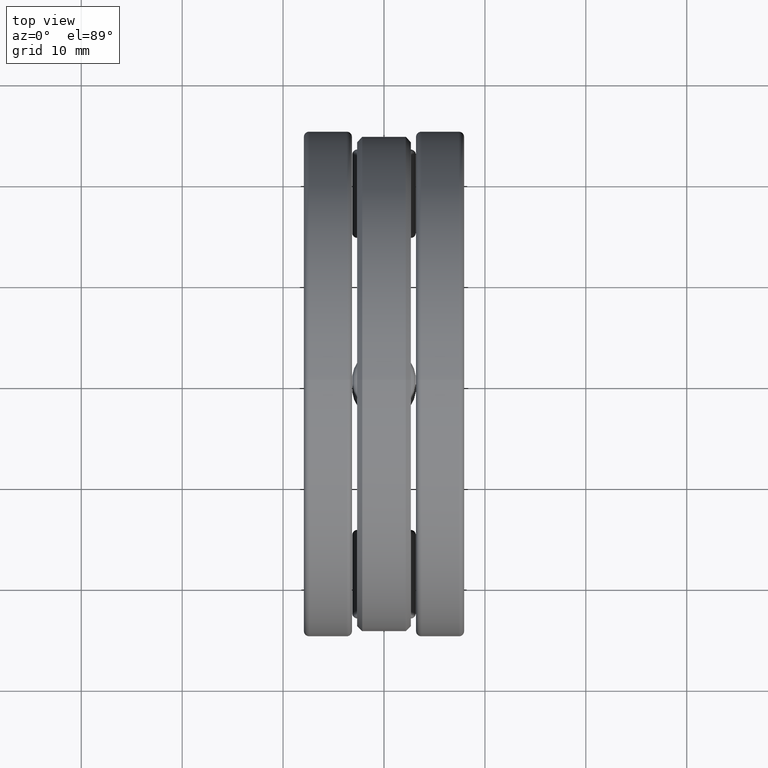
[diagram: clean part render]
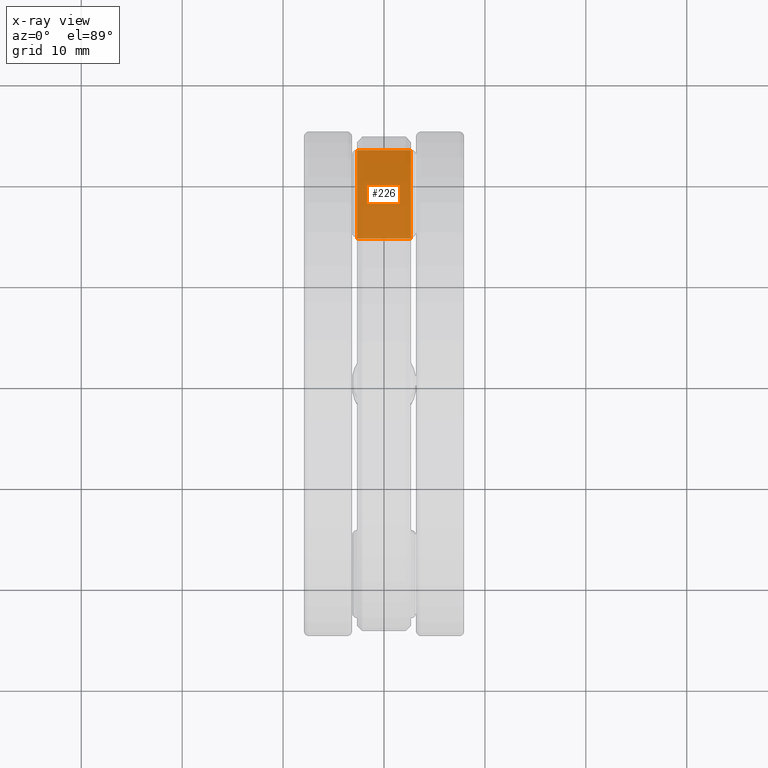
[diagram: x-ray — body ghosted, one internal face saturated and labeled with its STEP entity id]
A machine part, top view, then the same camera in x-ray: the body is ghosted and one INTERNAL B-rep face — a face not visible from any outside direction — is saturated and labeled: STEP entity #226.
In plain terms, the highlighted planar face has unit normal (0, 0, -1).
Its self-contained STEP definition (entity closure, byte-faithful):
#42 = FACE_OUTER_BOUND ( 'NONE', #883, .T. ) ;
#95 = DIRECTION ( 'NONE',  ( 0.0000000000000000000, 9.915963679362131500E-017, -1.000000000000000000 ) ) ;
#122 = DIRECTION ( 'NONE',  ( 1.000000000000000000, -0.0000000000000000000, -0.0000000000000000000 ) ) ;
#150 = LINE ( 'NONE', #971, #168 ) ;
#160 = ORIENTED_EDGE ( 'NONE', *, *, #479, .T. ) ;
#168 = VECTOR ( 'NONE', #991, 39.37007874015748100 ) ;
#226 = ADVANCED_FACE ( 'NONE', ( #42 ), #554, .F. ) ;
#227 = CARTESIAN_POINT ( 'NONE',  ( 0.1050000000000000400, 3.012874373890890600E-017, -0.1250000000000000600 ) ) ;
#283 = EDGE_CURVE ( 'NONE', #687, #717, #150, .T. ) ;
#296 = LINE ( 'NONE', #227, #1449 ) ;
#357 = LINE ( 'NONE', #691, #617 ) ;
#377 = EDGE_CURVE ( 'NONE', #1283, #687, #1036, .T. ) ;
#479 = EDGE_CURVE ( 'NONE', #635, #717, #296, .T. ) ;
#487 = CARTESIAN_POINT ( 'NONE',  ( 0.1050000000000000400, 0.5700000000000000600, -0.1250000000000000300 ) ) ;
#554 = PLANE ( 'NONE',  #755 ) ;
#559 = EDGE_CURVE ( 'NONE', #1283, #635, #357, .T. ) ;
#564 = DIRECTION ( 'NONE',  ( -0.0000000000000000000, 1.000000000000000000, 9.915963679362131500E-017 ) ) ;
#605 = CARTESIAN_POINT ( 'NONE',  ( -0.1049999999999999700, 0.9143749999999996000, -0.1249999999999999900 ) ) ;
#617 = VECTOR ( 'NONE', #122, 39.37007874015748100 ) ;
#635 = VERTEX_POINT ( 'NONE', #487 ) ;
#687 = VERTEX_POINT ( 'NONE', #605 ) ;
#691 = CARTESIAN_POINT ( 'NONE',  ( -0.3125000000000000600, 0.5700000000000000600, -0.1250000000000000300 ) ) ;
#695 = CARTESIAN_POINT ( 'NONE',  ( -0.1049999999999999700, 0.5700000000000000600, -0.1250000000000000300 ) ) ;
#717 = VERTEX_POINT ( 'NONE', #1075 ) ;
#755 = AXIS2_PLACEMENT_3D ( 'NONE', #781, #95, #895 ) ;
#761 = ORIENTED_EDGE ( 'NONE', *, *, #377, .F. ) ;
#765 = CARTESIAN_POINT ( 'NONE',  ( -0.1049999999999999700, -9.053872555769743500E-019, -0.1250000000000000600 ) ) ;
#781 = CARTESIAN_POINT ( 'NONE',  ( -0.3125000000000000600, 0.5700000000000000600, -0.1250000000000000300 ) ) ;
#883 = EDGE_LOOP ( 'NONE', ( #160, #898, #761, #944 ) ) ;
#895 = DIRECTION ( 'NONE',  ( 0.0000000000000000000, 1.000000000000000000, 9.915963679362131500E-017 ) ) ;
#898 = ORIENTED_EDGE ( 'NONE', *, *, #283, .F. ) ;
#944 = ORIENTED_EDGE ( 'NONE', *, *, #559, .T. ) ;
#971 = CARTESIAN_POINT ( 'NONE',  ( -0.3125000000000000600, 0.9143749999999996000, -0.1249999999999999900 ) ) ;
#991 = DIRECTION ( 'NONE',  ( 1.000000000000000000, -0.0000000000000000000, -0.0000000000000000000 ) ) ;
#1036 = LINE ( 'NONE', #765, #1325 ) ;
#1075 = CARTESIAN_POINT ( 'NONE',  ( 0.1050000000000000400, 0.9143749999999996000, -0.1249999999999999900 ) ) ;
#1283 = VERTEX_POINT ( 'NONE', #695 ) ;
#1325 = VECTOR ( 'NONE', #1452, 39.37007874015748100 ) ;
#1449 = VECTOR ( 'NONE', #564, 39.37007874015748100 ) ;
#1452 = DIRECTION ( 'NONE',  ( -0.0000000000000000000, 1.000000000000000000, 9.915963679362131500E-017 ) ) ;